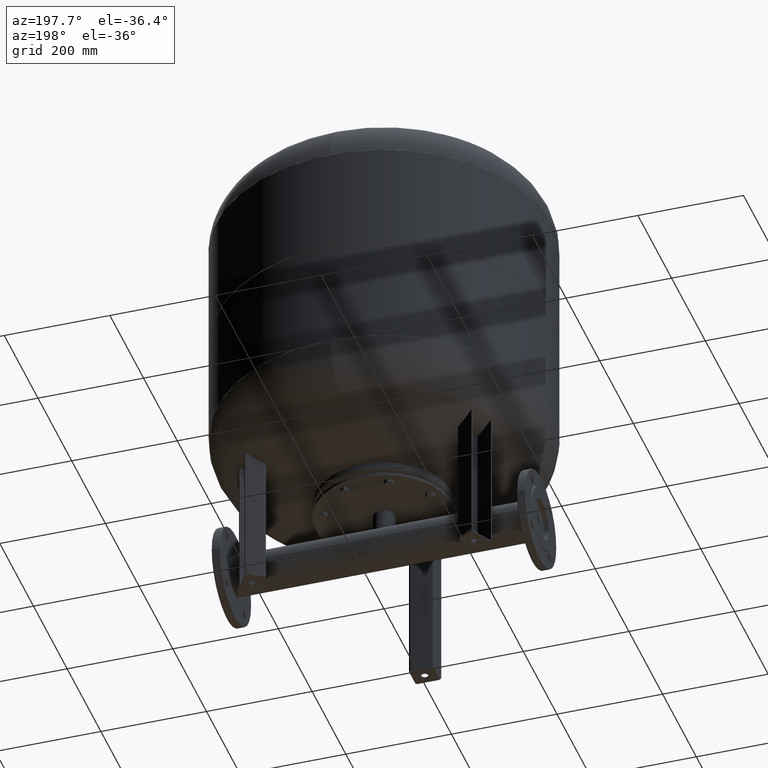
[diagram: clean part render]
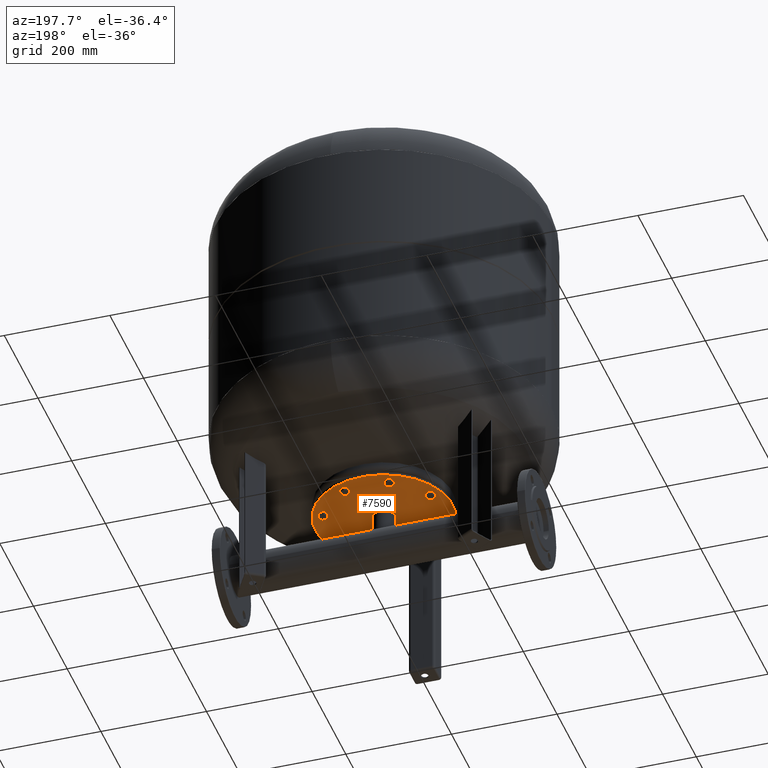
[diagram: same view with one face highlighted and labeled with its STEP entity id]
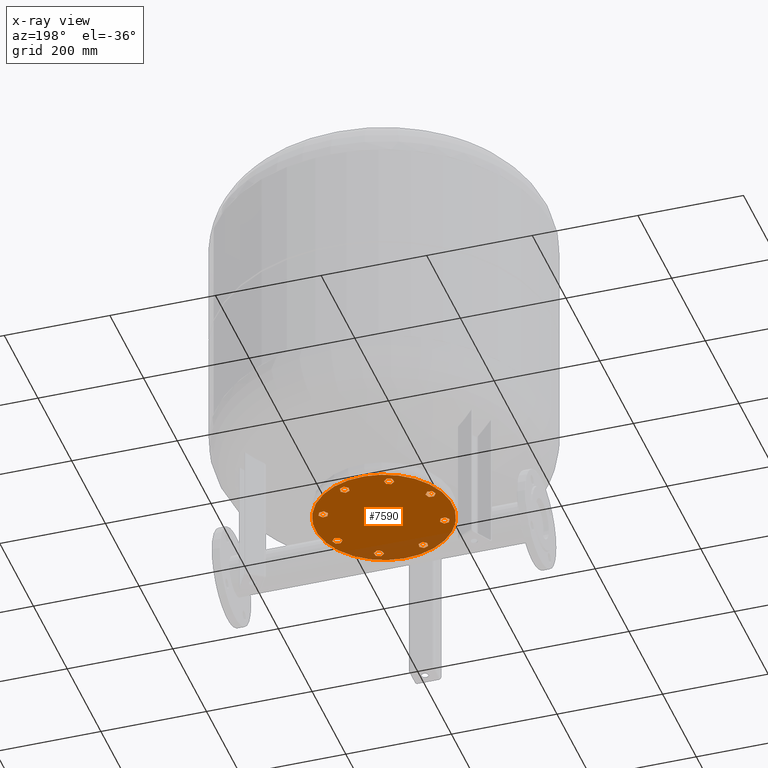
[diagram: x-ray of the same camera — body ghosted, the highlighted face saturated]
A machine part, auxiliary view. The second image highlights one B-rep face of the part: STEP entity #7590.
The next image is the same camera in x-ray: the body ghosted, the highlighted face saturated — about 14% of this face is hidden behind the body in this view.
In plain terms, the highlighted planar face has unit normal (0, 0, 1).
Its self-contained STEP definition (entity closure, byte-faithful):
#3608=CARTESIAN_POINT('',(-120.104339226467270,-49.748846207461682,185.0));
#3609=VERTEX_POINT('',#3608);
#3618=CARTESIAN_POINT('',(120.104339226467290,49.748846207461654,185.0));
#3619=VERTEX_POINT('',#3618);
#3620=CARTESIAN_POINT('',(1.874608E-015,-4.525704E-015,185.0));
#3621=DIRECTION('',(0.0,0.0,1.0));
#3622=DIRECTION('',(-0.923879532511287,-0.382683432365090,0.0));
#3623=AXIS2_PLACEMENT_3D('',#3620,#3621,#3622);
#3624=CIRCLE('',#3623,130.0);
#3625=EDGE_CURVE('',#3609,#3619,#3624,.T.);
#3652=CARTESIAN_POINT('',(-19.586246089239278,-8.112888766139911,185.0));
#3653=VERTEX_POINT('',#3652);
#3669=CARTESIAN_POINT('',(19.586246089239285,8.112888766139898,185.0));
#3670=VERTEX_POINT('',#3669);
#3677=CARTESIAN_POINT('',(1.874608E-015,-4.525704E-015,185.0));
#3678=DIRECTION('',(0.0,0.0,1.0));
#3679=DIRECTION('',(-0.923879532511287,-0.382683432365090,0.0));
#3680=AXIS2_PLACEMENT_3D('',#3677,#3678,#3679);
#3681=CIRCLE('',#3680,21.200000000000003);
#3682=EDGE_CURVE('',#3653,#3670,#3681,.T.);
#5553=CARTESIAN_POINT('',(-34.766493326885701,-96.003251377674417,185.0));
#5554=VERTEX_POINT('',#5553);
#5555=CARTESIAN_POINT('',(-43.300926875592538,-92.468173254628084,185.0));
#5556=VERTEX_POINT('',#5555);
#5557=CARTESIAN_POINT('',(-34.766493326885701,-96.003251377674417,185.0));
#5558=DIRECTION('',(-0.923879532511286,0.382683432365091,0.0));
#5559=VECTOR('',#5558,9.237604307034024);
#5560=LINE('',#5557,#5559);
#5561=EDGE_CURVE('',#5554,#5556,#5560,.T.);
#5593=CARTESIAN_POINT('',(-33.560744011452989,-105.161826699287860,185.0));
#5594=VERTEX_POINT('',#5593);
#5595=CARTESIAN_POINT('',(-33.560744011452989,-105.161826699287860,185.0));
#5596=DIRECTION('',(-0.130526192220053,0.991444861373810,0.0));
#5597=VECTOR('',#5596,9.237604307034005);
#5598=LINE('',#5595,#5597);
#5599=EDGE_CURVE('',#5594,#5554,#5598,.T.);
#5624=CARTESIAN_POINT('',(-40.889428244727128,-110.785323897855010,185.0));
#5625=VERTEX_POINT('',#5624);
#5626=CARTESIAN_POINT('',(-40.889428244727128,-110.785323897855010,185.0));
#5627=DIRECTION('',(0.793353340291235,0.608761429008721,0.0));
#5628=VECTOR('',#5627,9.237604307034024);
#5629=LINE('',#5626,#5628);
#5630=EDGE_CURVE('',#5625,#5594,#5629,.T.);
#5655=CARTESIAN_POINT('',(-49.423861793433986,-107.250245774808700,185.0));
#5656=VERTEX_POINT('',#5655);
#5657=CARTESIAN_POINT('',(-49.423861793433986,-107.250245774808700,185.0));
#5658=DIRECTION('',(0.923879532511287,-0.382683432365088,0.0));
#5659=VECTOR('',#5658,9.237604307034033);
#5660=LINE('',#5657,#5659);
#5661=EDGE_CURVE('',#5656,#5625,#5660,.T.);
#5686=CARTESIAN_POINT('',(-50.629611108866676,-98.091670453195235,185.0));
#5687=VERTEX_POINT('',#5686);
#5688=CARTESIAN_POINT('',(-43.300926875592538,-92.468173254628084,185.0));
#5689=DIRECTION('',(-0.793353340291235,-0.608761429008721,0.0));
#5690=VECTOR('',#5689,9.237604307034024);
#5691=LINE('',#5688,#5690);
#5692=EDGE_CURVE('',#5556,#5687,#5691,.T.);
#5717=CARTESIAN_POINT('',(-50.629611108866676,-98.091670453195235,185.0));
#5718=DIRECTION('',(0.130526192220051,-0.991444861373811,0.0));
#5719=VECTOR('',#5718,9.237604307034030);
#5720=LINE('',#5717,#5719);
#5721=EDGE_CURVE('',#5687,#5656,#5720,.T.);
#5799=CARTESIAN_POINT('',(43.300926875592602,-92.468173254628084,185.0));
#5800=VERTEX_POINT('',#5799);
#5801=CARTESIAN_POINT('',(34.766493326885758,-96.003251377674403,185.0));
#5802=VERTEX_POINT('',#5801);
#5803=CARTESIAN_POINT('',(43.300926875592602,-92.468173254628084,185.0));
#5804=DIRECTION('',(-0.923879532511287,-0.382683432365090,0.0));
#5805=VECTOR('',#5804,9.237604307034026);
#5806=LINE('',#5803,#5805);
#5807=EDGE_CURVE('',#5800,#5802,#5806,.T.);
#5839=CARTESIAN_POINT('',(50.629611108866733,-98.091670453195221,185.0));
#5840=VERTEX_POINT('',#5839);
#5841=CARTESIAN_POINT('',(50.629611108866733,-98.091670453195221,185.0));
#5842=DIRECTION('',(-0.793353340291235,0.608761429008721,0.0));
#5843=VECTOR('',#5842,9.237604307034008);
#5844=LINE('',#5841,#5843);
#5845=EDGE_CURVE('',#5840,#5800,#5844,.T.);
#5870=CARTESIAN_POINT('',(49.423861793434035,-107.250245774808680,185.0));
#5871=VERTEX_POINT('',#5870);
#5872=CARTESIAN_POINT('',(49.423861793434035,-107.250245774808680,185.0));
#5873=DIRECTION('',(0.130526192220051,0.991444861373810,0.0));
#5874=VECTOR('',#5873,9.237604307034017);
#5875=LINE('',#5872,#5874);
#5876=EDGE_CURVE('',#5871,#5840,#5875,.T.);
#5901=CARTESIAN_POINT('',(40.889428244727185,-110.785323897854990,185.0));
#5902=VERTEX_POINT('',#5901);
#5903=CARTESIAN_POINT('',(40.889428244727185,-110.785323897854990,185.0));
#5904=DIRECTION('',(0.923879532511287,0.382683432365090,0.0));
#5905=VECTOR('',#5904,9.237604307034031);
#5906=LINE('',#5903,#5905);
#5907=EDGE_CURVE('',#5902,#5871,#5906,.T.);
#5932=CARTESIAN_POINT('',(33.560744011453068,-105.161826699287840,185.0));
#5933=VERTEX_POINT('',#5932);
#5934=CARTESIAN_POINT('',(34.766493326885758,-96.003251377674403,185.0));
#5935=DIRECTION('',(-0.130526192220051,-0.991444861373810,0.0));
#5936=VECTOR('',#5935,9.237604307034003);
#5937=LINE('',#5934,#5936);
#5938=EDGE_CURVE('',#5802,#5933,#5937,.T.);
#5963=CARTESIAN_POINT('',(33.560744011453068,-105.161826699287840,185.0));
#5964=DIRECTION('',(0.793353340291234,-0.608761429008722,0.0));
#5965=VECTOR('',#5964,9.237604307034006);
#5966=LINE('',#5963,#5965);
#5967=EDGE_CURVE('',#5933,#5902,#5966,.T.);
#6045=CARTESIAN_POINT('',(96.003251377674403,-34.766493326885708,185.0));
#6046=VERTEX_POINT('',#6045);
#6047=CARTESIAN_POINT('',(92.468173254628098,-43.300926875592552,185.0));
#6048=VERTEX_POINT('',#6047);
#6049=CARTESIAN_POINT('',(96.003251377674403,-34.766493326885708,185.0));
#6050=DIRECTION('',(-0.382683432365089,-0.923879532511287,0.0));
#6051=VECTOR('',#6050,9.237604307034019);
#6052=LINE('',#6049,#6051);
#6053=EDGE_CURVE('',#6046,#6048,#6052,.T.);
#6085=CARTESIAN_POINT('',(105.161826699287870,-33.560744011453004,185.0));
#6086=VERTEX_POINT('',#6085);
#6087=CARTESIAN_POINT('',(105.161826699287870,-33.560744011453004,185.0));
#6088=DIRECTION('',(-0.991444861373810,-0.130526192220052,0.0));
#6089=VECTOR('',#6088,9.237604307034031);
#6090=LINE('',#6087,#6089);
#6091=EDGE_CURVE('',#6086,#6046,#6090,.T.);
#6116=CARTESIAN_POINT('',(110.785323897855010,-40.889428244727164,185.0));
#6117=VERTEX_POINT('',#6116);
#6118=CARTESIAN_POINT('',(110.785323897855010,-40.889428244727164,185.0));
#6119=DIRECTION('',(-0.608761429008719,0.793353340291236,0.0));
#6120=VECTOR('',#6119,9.237604307034031);
#6121=LINE('',#6118,#6120);
#6122=EDGE_CURVE('',#6117,#6086,#6121,.T.);
#6147=CARTESIAN_POINT('',(107.250245774808690,-49.423861793434014,185.0));
#6148=VERTEX_POINT('',#6147);
#6149=CARTESIAN_POINT('',(107.250245774808690,-49.423861793434014,185.0));
#6150=DIRECTION('',(0.382683432365090,0.923879532511287,0.0));
#6151=VECTOR('',#6150,9.237604307034031);
#6152=LINE('',#6149,#6151);
#6153=EDGE_CURVE('',#6148,#6117,#6152,.T.);
#6178=CARTESIAN_POINT('',(98.091670453195235,-50.629611108866698,185.0));
#6179=VERTEX_POINT('',#6178);
#6180=CARTESIAN_POINT('',(92.468173254628098,-43.300926875592552,185.0));
#6181=DIRECTION('',(0.608761429008720,-0.793353340291236,0.0));
#6182=VECTOR('',#6181,9.237604307034021);
#6183=LINE('',#6180,#6182);
#6184=EDGE_CURVE('',#6048,#6179,#6183,.T.);
#6209=CARTESIAN_POINT('',(98.091670453195235,-50.629611108866698,185.0));
#6210=DIRECTION('',(0.991444861373811,0.130526192220050,0.0));
#6211=VECTOR('',#6210,9.237604307034015);
#6212=LINE('',#6209,#6211);
#6213=EDGE_CURVE('',#6179,#6148,#6212,.T.);
#6291=CARTESIAN_POINT('',(92.468173254628084,43.300926875592594,185.0));
#6292=VERTEX_POINT('',#6291);
#6293=CARTESIAN_POINT('',(96.003251377674403,34.766493326885751,185.0));
#6294=VERTEX_POINT('',#6293);
#6295=CARTESIAN_POINT('',(92.468173254628084,43.300926875592594,185.0));
#6296=DIRECTION('',(0.382683432365090,-0.923879532511287,0.0));
#6297=VECTOR('',#6296,9.237604307034026);
#6298=LINE('',#6295,#6297);
#6299=EDGE_CURVE('',#6292,#6294,#6298,.T.);
#6331=CARTESIAN_POINT('',(98.091670453195221,50.629611108866726,185.0));
#6332=VERTEX_POINT('',#6331);
#6333=CARTESIAN_POINT('',(98.091670453195221,50.629611108866726,185.0));
#6334=DIRECTION('',(-0.608761429008721,-0.793353340291235,0.0));
#6335=VECTOR('',#6334,9.237604307034008);
#6336=LINE('',#6333,#6335);
#6337=EDGE_CURVE('',#6332,#6292,#6336,.T.);
#6362=CARTESIAN_POINT('',(107.250245774808680,49.423861793434028,185.0));
#6363=VERTEX_POINT('',#6362);
#6364=CARTESIAN_POINT('',(107.250245774808680,49.423861793434028,185.0));
#6365=DIRECTION('',(-0.991444861373810,0.130526192220051,0.0));
#6366=VECTOR('',#6365,9.237604307034017);
#6367=LINE('',#6364,#6366);
#6368=EDGE_CURVE('',#6363,#6332,#6367,.T.);
#6393=CARTESIAN_POINT('',(110.785323897854990,40.889428244727178,185.0));
#6394=VERTEX_POINT('',#6393);
#6395=CARTESIAN_POINT('',(110.785323897854990,40.889428244727178,185.0));
#6396=DIRECTION('',(-0.382683432365090,0.923879532511287,0.0));
#6397=VECTOR('',#6396,9.237604307034031);
#6398=LINE('',#6395,#6397);
#6399=EDGE_CURVE('',#6394,#6363,#6398,.T.);
#6424=CARTESIAN_POINT('',(105.161826699287840,33.560744011453060,185.0));
#6425=VERTEX_POINT('',#6424);
#6426=CARTESIAN_POINT('',(96.003251377674403,34.766493326885751,185.0));
#6427=DIRECTION('',(0.991444861373810,-0.130526192220051,0.0));
#6428=VECTOR('',#6427,9.237604307034003);
#6429=LINE('',#6426,#6428);
#6430=EDGE_CURVE('',#6294,#6425,#6429,.T.);
#6455=CARTESIAN_POINT('',(105.161826699287840,33.560744011453060,185.0));
#6456=DIRECTION('',(0.608761429008722,0.793353340291234,0.0));
#6457=VECTOR('',#6456,9.237604307034006);
#6458=LINE('',#6455,#6457);
#6459=EDGE_CURVE('',#6425,#6394,#6458,.T.);
#6537=CARTESIAN_POINT('',(34.766493326885723,96.003251377674417,185.0));
#6538=VERTEX_POINT('',#6537);
#6539=CARTESIAN_POINT('',(43.300926875592552,92.468173254628084,185.0));
#6540=VERTEX_POINT('',#6539);
#6541=CARTESIAN_POINT('',(34.766493326885723,96.003251377674417,185.0));
#6542=DIRECTION('',(0.923879532511286,-0.382683432365092,0.0));
#6543=VECTOR('',#6542,9.237604307034017);
#6544=LINE('',#6541,#6543);
#6545=EDGE_CURVE('',#6538,#6540,#6544,.T.);
#6577=CARTESIAN_POINT('',(33.560744011453025,105.161826699287860,185.0));
#6578=VERTEX_POINT('',#6577);
#6579=CARTESIAN_POINT('',(33.560744011453025,105.161826699287860,185.0));
#6580=DIRECTION('',(0.130526192220052,-0.991444861373810,0.0));
#6581=VECTOR('',#6580,9.237604307034003);
#6582=LINE('',#6579,#6581);
#6583=EDGE_CURVE('',#6578,#6538,#6582,.T.);
#6608=CARTESIAN_POINT('',(40.889428244727164,110.785323897855010,185.0));
#6609=VERTEX_POINT('',#6608);
#6610=CARTESIAN_POINT('',(40.889428244727164,110.785323897855010,185.0));
#6611=DIRECTION('',(-0.793353340291235,-0.608761429008721,0.0));
#6612=VECTOR('',#6611,9.237604307034024);
#6613=LINE('',#6610,#6612);
#6614=EDGE_CURVE('',#6609,#6578,#6613,.T.);
#6639=CARTESIAN_POINT('',(49.423861793434014,107.250245774808690,185.0));
#6640=VERTEX_POINT('',#6639);
#6641=CARTESIAN_POINT('',(49.423861793434014,107.250245774808690,185.0));
#6642=DIRECTION('',(-0.923879532511287,0.382683432365090,0.0));
#6643=VECTOR('',#6642,9.237604307034031);
#6644=LINE('',#6641,#6643);
#6645=EDGE_CURVE('',#6640,#6609,#6644,.T.);
#6670=CARTESIAN_POINT('',(50.629611108866698,98.091670453195235,185.0));
#6671=VERTEX_POINT('',#6670);
#6672=CARTESIAN_POINT('',(43.300926875592552,92.468173254628084,185.0));
#6673=DIRECTION('',(0.793353340291235,0.608761429008721,0.0));
#6674=VECTOR('',#6673,9.237604307034030);
#6675=LINE('',#6672,#6674);
#6676=EDGE_CURVE('',#6540,#6671,#6675,.T.);
#6701=CARTESIAN_POINT('',(50.629611108866698,98.091670453195235,185.0));
#6702=DIRECTION('',(-0.130526192220050,0.991444861373811,0.0));
#6703=VECTOR('',#6702,9.237604307034015);
#6704=LINE('',#6701,#6703);
#6705=EDGE_CURVE('',#6671,#6640,#6704,.T.);
#6783=CARTESIAN_POINT('',(-43.300926875592580,92.468173254628084,185.0));
#6784=VERTEX_POINT('',#6783);
#6785=CARTESIAN_POINT('',(-34.766493326885751,96.003251377674403,185.0));
#6786=VERTEX_POINT('',#6785);
#6787=CARTESIAN_POINT('',(-43.300926875592580,92.468173254628084,185.0));
#6788=DIRECTION('',(0.923879532511287,0.382683432365090,0.0));
#6789=VECTOR('',#6788,9.237604307034012);
#6790=LINE('',#6787,#6789);
#6791=EDGE_CURVE('',#6784,#6786,#6790,.T.);
#6823=CARTESIAN_POINT('',(-50.629611108866705,98.091670453195235,185.0));
#6824=VERTEX_POINT('',#6823);
#6825=CARTESIAN_POINT('',(-50.629611108866705,98.091670453195235,185.0));
#6826=DIRECTION('',(0.793353340291234,-0.608761429008722,0.0));
#6827=VECTOR('',#6826,9.237604307034012);
#6828=LINE('',#6825,#6827);
#6829=EDGE_CURVE('',#6824,#6784,#6828,.T.);
#6854=CARTESIAN_POINT('',(-49.423861793434014,107.250245774808680,185.0));
#6855=VERTEX_POINT('',#6854);
#6856=CARTESIAN_POINT('',(-49.423861793434014,107.250245774808680,185.0));
#6857=DIRECTION('',(-0.130526192220051,-0.991444861373810,0.0));
#6858=VECTOR('',#6857,9.237604307034003);
#6859=LINE('',#6856,#6858);
#6860=EDGE_CURVE('',#6855,#6824,#6859,.T.);
#6885=CARTESIAN_POINT('',(-40.889428244727171,110.785323897855010,185.0));
#6886=VERTEX_POINT('',#6885);
#6887=CARTESIAN_POINT('',(-40.889428244727171,110.785323897855010,185.0));
#6888=DIRECTION('',(-0.923879532511286,-0.382683432365091,0.0));
#6889=VECTOR('',#6888,9.237604307034031);
#6890=LINE('',#6887,#6889);
#6891=EDGE_CURVE('',#6886,#6855,#6890,.T.);
#6916=CARTESIAN_POINT('',(-33.560744011453032,105.161826699287860,185.0));
#6917=VERTEX_POINT('',#6916);
#6918=CARTESIAN_POINT('',(-34.766493326885751,96.003251377674403,185.0));
#6919=DIRECTION('',(0.130526192220054,0.991444861373810,0.0));
#6920=VECTOR('',#6919,9.237604307034019);
#6921=LINE('',#6918,#6920);
#6922=EDGE_CURVE('',#6786,#6917,#6921,.T.);
#6947=CARTESIAN_POINT('',(-33.560744011453032,105.161826699287860,185.0));
#6948=DIRECTION('',(-0.793353340291235,0.608761429008721,0.0));
#6949=VECTOR('',#6948,9.237604307034024);
#6950=LINE('',#6947,#6949);
#6951=EDGE_CURVE('',#6917,#6886,#6950,.T.);
#7029=CARTESIAN_POINT('',(-96.003251377674417,34.766493326885723,185.0));
#7030=VERTEX_POINT('',#7029);
#7031=CARTESIAN_POINT('',(-92.468173254628084,43.300926875592552,185.0));
#7032=VERTEX_POINT('',#7031);
#7033=CARTESIAN_POINT('',(-96.003251377674417,34.766493326885723,185.0));
#7034=DIRECTION('',(0.382683432365092,0.923879532511286,0.0));
#7035=VECTOR('',#7034,9.237604307034017);
#7036=LINE('',#7033,#7035);
#7037=EDGE_CURVE('',#7030,#7032,#7036,.T.);
#7069=CARTESIAN_POINT('',(-105.161826699287860,33.560744011453025,185.0));
#7070=VERTEX_POINT('',#7069);
#7071=CARTESIAN_POINT('',(-105.161826699287860,33.560744011453025,185.0));
#7072=DIRECTION('',(0.991444861373810,0.130526192220052,0.0));
#7073=VECTOR('',#7072,9.237604307034003);
#7074=LINE('',#7071,#7073);
#7075=EDGE_CURVE('',#7070,#7030,#7074,.T.);
#7100=CARTESIAN_POINT('',(-110.785323897855010,40.889428244727164,185.0));
#7101=VERTEX_POINT('',#7100);
#7102=CARTESIAN_POINT('',(-110.785323897855010,40.889428244727164,185.0));
#7103=DIRECTION('',(0.608761429008721,-0.793353340291235,0.0));
#7104=VECTOR('',#7103,9.237604307034024);
#7105=LINE('',#7102,#7104);
#7106=EDGE_CURVE('',#7101,#7070,#7105,.T.);
#7131=CARTESIAN_POINT('',(-107.250245774808690,49.423861793434014,185.0));
#7132=VERTEX_POINT('',#7131);
#7133=CARTESIAN_POINT('',(-107.250245774808690,49.423861793434014,185.0));
#7134=DIRECTION('',(-0.382683432365090,-0.923879532511287,0.0));
#7135=VECTOR('',#7134,9.237604307034031);
#7136=LINE('',#7133,#7135);
#7137=EDGE_CURVE('',#7132,#7101,#7136,.T.);
#7162=CARTESIAN_POINT('',(-98.091670453195235,50.629611108866698,185.0));
#7163=VERTEX_POINT('',#7162);
#7164=CARTESIAN_POINT('',(-92.468173254628084,43.300926875592552,185.0));
#7165=DIRECTION('',(-0.608761429008721,0.793353340291235,0.0));
#7166=VECTOR('',#7165,9.237604307034030);
#7167=LINE('',#7164,#7166);
#7168=EDGE_CURVE('',#7032,#7163,#7167,.T.);
#7193=CARTESIAN_POINT('',(-98.091670453195235,50.629611108866698,185.0));
#7194=DIRECTION('',(-0.991444861373811,-0.130526192220050,0.0));
#7195=VECTOR('',#7194,9.237604307034015);
#7196=LINE('',#7193,#7195);
#7197=EDGE_CURVE('',#7163,#7132,#7196,.T.);
#7275=CARTESIAN_POINT('',(-92.468173254628084,-43.300926875592587,185.0));
#7276=VERTEX_POINT('',#7275);
#7277=CARTESIAN_POINT('',(-96.003251377674403,-34.766493326885751,185.0));
#7278=VERTEX_POINT('',#7277);
#7279=CARTESIAN_POINT('',(-92.468173254628084,-43.300926875592587,185.0));
#7280=DIRECTION('',(-0.382683432365090,0.923879532511287,0.0));
#7281=VECTOR('',#7280,9.237604307034019);
#7282=LINE('',#7279,#7281);
#7283=EDGE_CURVE('',#7276,#7278,#7282,.T.);
#7315=CARTESIAN_POINT('',(-98.091670453195221,-50.629611108866719,185.0));
#7316=VERTEX_POINT('',#7315);
#7317=CARTESIAN_POINT('',(-98.091670453195221,-50.629611108866719,185.0));
#7318=DIRECTION('',(0.608761429008721,0.793353340291235,0.0));
#7319=VECTOR('',#7318,9.237604307034008);
#7320=LINE('',#7317,#7319);
#7321=EDGE_CURVE('',#7316,#7276,#7320,.T.);
#7346=CARTESIAN_POINT('',(-107.250245774808690,-49.423861793434014,185.0));
#7347=VERTEX_POINT('',#7346);
#7348=CARTESIAN_POINT('',(-107.250245774808690,-49.423861793434014,185.0));
#7349=DIRECTION('',(0.991444861373810,-0.130526192220052,0.0));
#7350=VECTOR('',#7349,9.237604307034031);
#7351=LINE('',#7348,#7350);
#7352=EDGE_CURVE('',#7347,#7316,#7351,.T.);
#7377=CARTESIAN_POINT('',(-110.785323897855010,-40.889428244727171,185.0));
#7378=VERTEX_POINT('',#7377);
#7379=CARTESIAN_POINT('',(-110.785323897855010,-40.889428244727171,185.0));
#7380=DIRECTION('',(0.382683432365090,-0.923879532511287,0.0));
#7381=VECTOR('',#7380,9.237604307034026);
#7382=LINE('',#7379,#7381);
#7383=EDGE_CURVE('',#7378,#7347,#7382,.T.);
#7408=CARTESIAN_POINT('',(-105.161826699287860,-33.560744011453039,185.0));
#7409=VERTEX_POINT('',#7408);
#7410=CARTESIAN_POINT('',(-96.003251377674403,-34.766493326885751,185.0));
#7411=DIRECTION('',(-0.991444861373810,0.130526192220053,0.0));
#7412=VECTOR('',#7411,9.237604307034019);
#7413=LINE('',#7410,#7412);
#7414=EDGE_CURVE('',#7278,#7409,#7413,.T.);
#7439=CARTESIAN_POINT('',(-105.161826699287860,-33.560744011453039,185.0));
#7440=DIRECTION('',(-0.608761429008722,-0.793353340291235,0.0));
#7441=VECTOR('',#7440,9.237604307034017);
#7442=LINE('',#7439,#7441);
#7443=EDGE_CURVE('',#7409,#7378,#7442,.T.);
#7476=CARTESIAN_POINT('',(1.874608E-015,-4.525704E-015,185.0));
#7477=DIRECTION('',(0.0,0.0,1.0));
#7478=DIRECTION('',(-0.923879532511287,-0.382683432365090,0.0));
#7479=AXIS2_PLACEMENT_3D('',#7476,#7477,#7478);
#7480=CIRCLE('',#7479,21.200000000000003);
#7481=EDGE_CURVE('',#3670,#3653,#7480,.T.);
#7503=CARTESIAN_POINT('',(1.874608E-015,-4.525704E-015,185.0));
#7504=DIRECTION('',(0.0,0.0,1.0));
#7505=DIRECTION('',(-0.923879532511287,-0.382683432365090,0.0));
#7506=AXIS2_PLACEMENT_3D('',#7503,#7504,#7505);
#7507=CIRCLE('',#7506,130.0);
#7508=EDGE_CURVE('',#3619,#3609,#7507,.T.);
#7513=CARTESIAN_POINT('',(1.874608E-015,-4.525704E-015,185.0));
#7514=DIRECTION('',(0.0,0.0,1.0));
#7515=DIRECTION('',(-0.923879532511287,-0.382683432365090,0.0));
#7516=AXIS2_PLACEMENT_3D('',#7513,#7514,#7515);
#7517=PLANE('',#7516);
#7518=ORIENTED_EDGE('',*,*,#7508,.F.);
#7519=ORIENTED_EDGE('',*,*,#3625,.F.);
#7520=EDGE_LOOP('',(#7518,#7519));
#7521=FACE_OUTER_BOUND('',#7520,.T.);
#7522=ORIENTED_EDGE('',*,*,#5561,.T.);
#7523=ORIENTED_EDGE('',*,*,#5692,.T.);
#7524=ORIENTED_EDGE('',*,*,#5721,.T.);
#7525=ORIENTED_EDGE('',*,*,#5661,.T.);
#7526=ORIENTED_EDGE('',*,*,#5630,.T.);
#7527=ORIENTED_EDGE('',*,*,#5599,.T.);
#7528=EDGE_LOOP('',(#7522,#7523,#7524,#7525,#7526,#7527));
#7529=FACE_BOUND('',#7528,.T.);
#7530=ORIENTED_EDGE('',*,*,#5807,.T.);
#7531=ORIENTED_EDGE('',*,*,#5938,.T.);
#7532=ORIENTED_EDGE('',*,*,#5967,.T.);
#7533=ORIENTED_EDGE('',*,*,#5907,.T.);
#7534=ORIENTED_EDGE('',*,*,#5876,.T.);
#7535=ORIENTED_EDGE('',*,*,#5845,.T.);
#7536=EDGE_LOOP('',(#7530,#7531,#7532,#7533,#7534,#7535));
#7537=FACE_BOUND('',#7536,.T.);
#7538=ORIENTED_EDGE('',*,*,#6053,.T.);
#7539=ORIENTED_EDGE('',*,*,#6184,.T.);
#7540=ORIENTED_EDGE('',*,*,#6213,.T.);
#7541=ORIENTED_EDGE('',*,*,#6153,.T.);
#7542=ORIENTED_EDGE('',*,*,#6122,.T.);
#7543=ORIENTED_EDGE('',*,*,#6091,.T.);
#7544=EDGE_LOOP('',(#7538,#7539,#7540,#7541,#7542,#7543));
#7545=FACE_BOUND('',#7544,.T.);
#7546=ORIENTED_EDGE('',*,*,#6299,.T.);
#7547=ORIENTED_EDGE('',*,*,#6430,.T.);
#7548=ORIENTED_EDGE('',*,*,#6459,.T.);
#7549=ORIENTED_EDGE('',*,*,#6399,.T.);
#7550=ORIENTED_EDGE('',*,*,#6368,.T.);
#7551=ORIENTED_EDGE('',*,*,#6337,.T.);
#7552=EDGE_LOOP('',(#7546,#7547,#7548,#7549,#7550,#7551));
#7553=FACE_BOUND('',#7552,.T.);
#7554=ORIENTED_EDGE('',*,*,#6545,.T.);
#7555=ORIENTED_EDGE('',*,*,#6676,.T.);
#7556=ORIENTED_EDGE('',*,*,#6705,.T.);
#7557=ORIENTED_EDGE('',*,*,#6645,.T.);
#7558=ORIENTED_EDGE('',*,*,#6614,.T.);
#7559=ORIENTED_EDGE('',*,*,#6583,.T.);
#7560=EDGE_LOOP('',(#7554,#7555,#7556,#7557,#7558,#7559));
#7561=FACE_BOUND('',#7560,.T.);
#7562=ORIENTED_EDGE('',*,*,#6791,.T.);
#7563=ORIENTED_EDGE('',*,*,#6922,.T.);
#7564=ORIENTED_EDGE('',*,*,#6951,.T.);
#7565=ORIENTED_EDGE('',*,*,#6891,.T.);
#7566=ORIENTED_EDGE('',*,*,#6860,.T.);
#7567=ORIENTED_EDGE('',*,*,#6829,.T.);
#7568=EDGE_LOOP('',(#7562,#7563,#7564,#7565,#7566,#7567));
#7569=FACE_BOUND('',#7568,.T.);
#7570=ORIENTED_EDGE('',*,*,#7037,.T.);
#7571=ORIENTED_EDGE('',*,*,#7168,.T.);
#7572=ORIENTED_EDGE('',*,*,#7197,.T.);
#7573=ORIENTED_EDGE('',*,*,#7137,.T.);
#7574=ORIENTED_EDGE('',*,*,#7106,.T.);
#7575=ORIENTED_EDGE('',*,*,#7075,.T.);
#7576=EDGE_LOOP('',(#7570,#7571,#7572,#7573,#7574,#7575));
#7577=FACE_BOUND('',#7576,.T.);
#7578=ORIENTED_EDGE('',*,*,#7283,.T.);
#7579=ORIENTED_EDGE('',*,*,#7414,.T.);
#7580=ORIENTED_EDGE('',*,*,#7443,.T.);
#7581=ORIENTED_EDGE('',*,*,#7383,.T.);
#7582=ORIENTED_EDGE('',*,*,#7352,.T.);
#7583=ORIENTED_EDGE('',*,*,#7321,.T.);
#7584=EDGE_LOOP('',(#7578,#7579,#7580,#7581,#7582,#7583));
#7585=FACE_BOUND('',#7584,.T.);
#7586=ORIENTED_EDGE('',*,*,#7481,.T.);
#7587=ORIENTED_EDGE('',*,*,#3682,.T.);
#7588=EDGE_LOOP('',(#7586,#7587));
#7589=FACE_BOUND('',#7588,.T.);
#7590=ADVANCED_FACE('',(#7521,#7529,#7537,#7545,#7553,#7561,#7569,#7577,#7585,#7589),#7517,.F.);